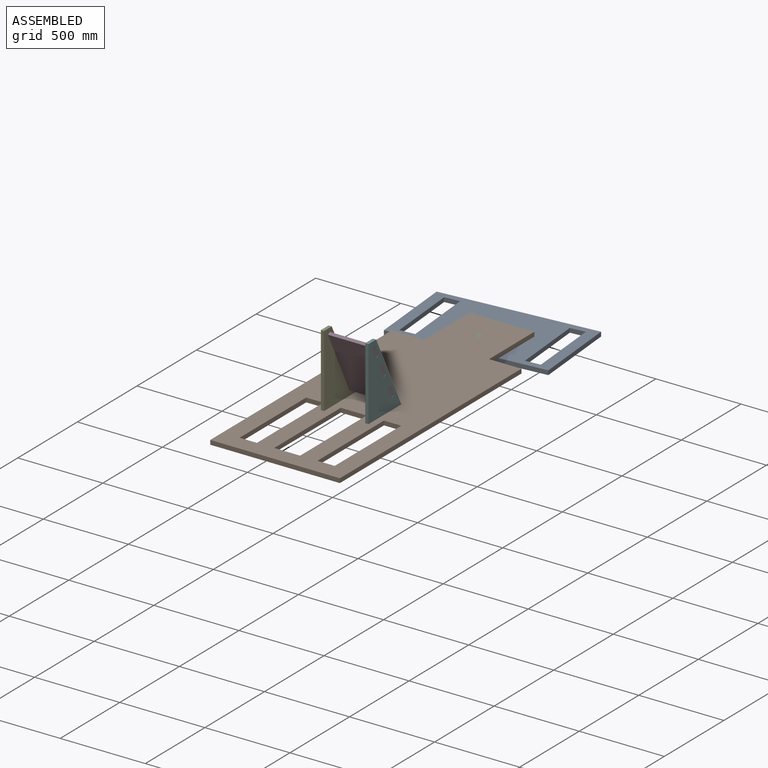
[diagram: assembled view]
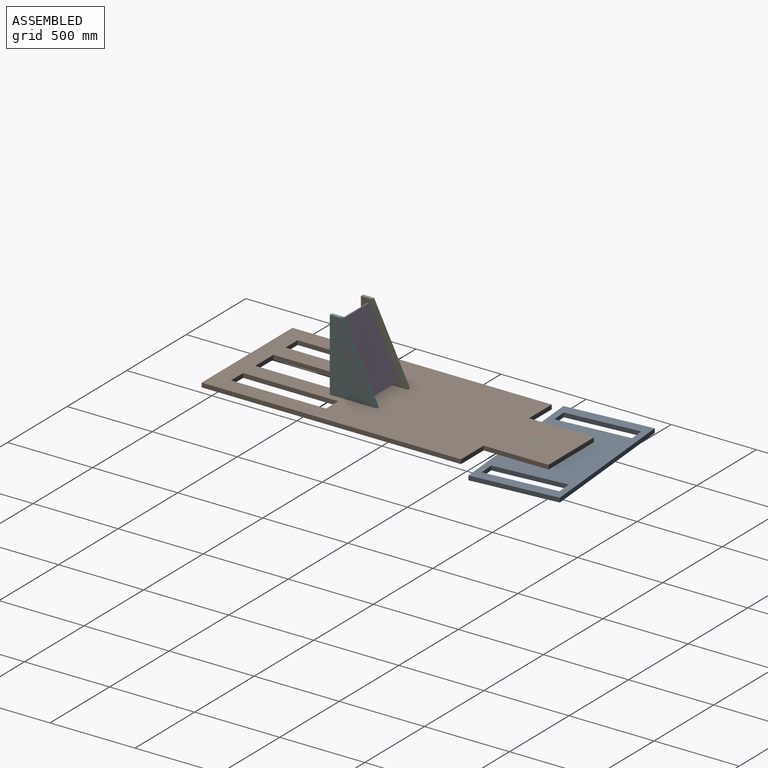
[diagram: assembled view, second angle]
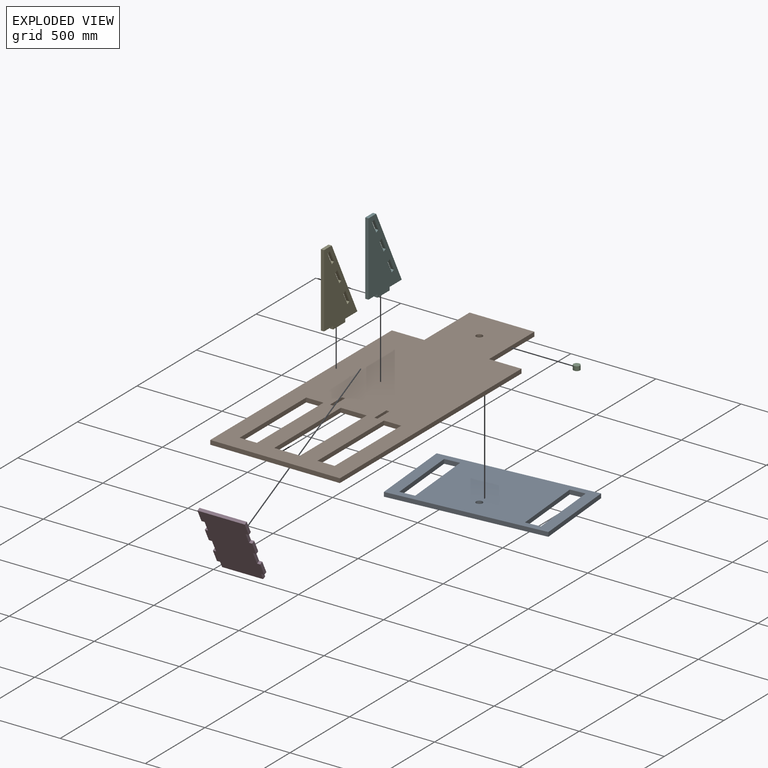
[diagram: exploded view]
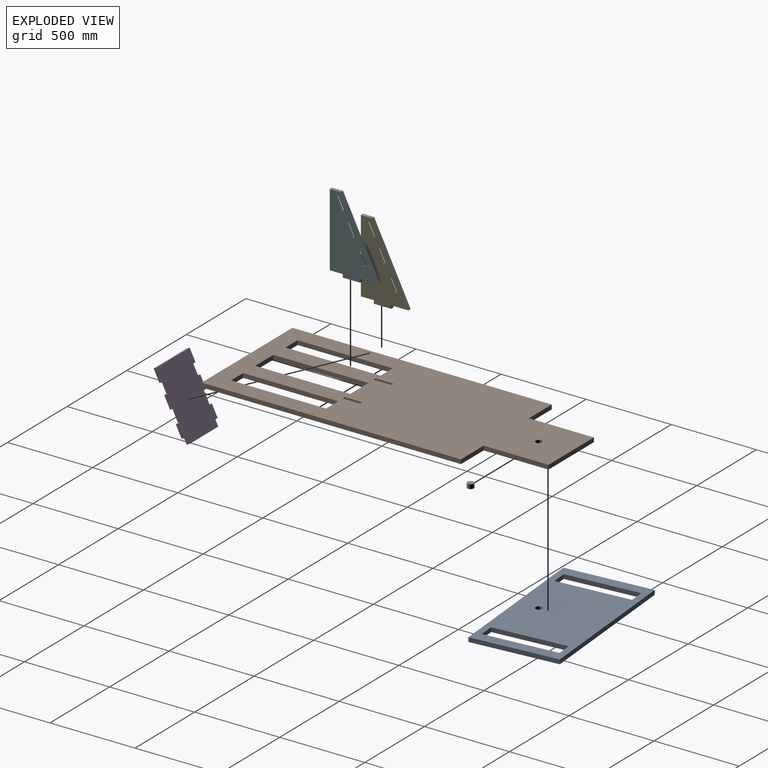
[diagram: exploded view, second angle]
ASSEMBLY  parts=6 mates=5
PART A: 15 faces, bbox 914.4x508x25.4 mm
  f0: plane 88.9x25.4mm, normal (0,1,0), area 2258.1mm2, adj f1,f12,f13,f14
  f1: plane 431.8x25.4mm, normal (1,0,0), area 10967.7mm2, adj f0,f2,f13,f14
  f2: plane 88.9x25.4mm, normal (0,-1,0), area 2258.1mm2, adj f1,f12,f13,f14
  f3: plane 431.8x25.4mm, normal (-1,0,0), area 10967.7mm2, adj f4,f10,f13,f14
  f4: plane 88.9x25.4mm, normal (0,1,0), area 2258.1mm2, adj f3,f5,f13,f14
  f5: plane 431.8x25.4mm, normal (1,0,0), area 10967.7mm2, adj f4,f10,f13,f14
  f6: plane 508x25.4mm, normal (-1,0,0), area 12903.2mm2, adj f7,f11,f13,f14
  f7: plane 914.4x25.4mm, normal (0,-1,0), area 23225.8mm2, adj f6,f8,f13,f14
  f8: plane 508x25.4mm, normal (1,0,0), area 12903.2mm2, adj f7,f11,f13,f14
  f9: cylinder r=19.05mm len=38.1mm, axis (0,0,-1), area 3040.2mm2, adj f13,f14
  f10: plane 88.9x25.4mm, normal (0,-1,0), area 2258.1mm2, adj f3,f5,f13,f14
  f11: plane 914.4x25.4mm, normal (0,1,0), area 23225.8mm2, adj f6,f8,f13,f14
  f12: plane 431.8x25.4mm, normal (-1,0,0), area 10967.7mm2, adj f0,f2,f13,f14
  f13: plane 914.4x508mm, normal (0,0,1), area 386601.1mm2, adj f0,f1,f2,f3,f4,f5,f6,f7
  f14: plane 914.4x508mm, normal (0,0,-1), area 386601.1mm2, adj f0,f1,f2,f3,f4,f5,f6,f7
PART B: 31 faces, bbox 762x1905x25.4 mm
  f0: plane 101.6x25.4mm, normal (-1,0,0), area 2580.6mm2, adj f1,f22,f29,f30
  f1: plane 25.4x18.54mm, normal (0,1,0), area 471mm2, adj f0,f2,f29,f30
  f2: plane 101.6x25.4mm, normal (1,0,0), area 2580.6mm2, adj f1,f22,f29,f30
  f3: plane 101.6x25.4mm, normal (0,-1,0), area 2580.6mm2, adj f4,f23,f29,f30
  f4: plane 558.8x25.4mm, normal (-1,0,0), area 14193.5mm2, adj f3,f5,f29,f30
  f5: plane 101.6x25.4mm, normal (0,1,0), area 2580.6mm2, adj f4,f23,f29,f30
  f6: plane 558.8x25.4mm, normal (-1,0,0), area 14193.5mm2, adj f7,f24,f29,f30
  f7: plane 101.6x25.4mm, normal (0,1,0), area 2580.6mm2, adj f6,f8,f29,f30
  f8: plane 558.8x25.4mm, normal (1,0,0), area 14193.5mm2, adj f7,f24,f29,f30
  f9: plane 558.8x25.4mm, normal (-1,0,0), area 14193.5mm2, adj f10,f25,f29,f30
  f10: plane 152.4x25.4mm, normal (0,1,0), area 3871mm2, adj f9,f11,f29,f30
  f11: plane 558.8x25.4mm, normal (1,0,0), area 14193.5mm2, adj f10,f25,f29,f30
  f12: plane 1524x25.4mm, normal (1,0,0), area 38709.6mm2, adj f13,f26,f29,f30
  f13: plane 190.5x25.4mm, normal (0,1,0), area 4838.7mm2, adj f12,f14,f29,f30
  f14: plane 381x25.4mm, normal (1,0,0), area 9677.4mm2, adj f13,f15,f29,f30
  f15: plane 381x25.4mm, normal (0,1,0), area 9677.4mm2, adj f14,f16,f29,f30
  f16: plane 381x25.4mm, normal (-1,0,0), area 9677.4mm2, adj f15,f17,f29,f30
  f17: plane 190.5x25.4mm, normal (0,1,0), area 4838.7mm2, adj f16,f18,f29,f30
  f18: plane 1524x25.4mm, normal (-1,0,0), area 38709.6mm2, adj f17,f26,f29,f30
  f19: plane 25.4x18.54mm, normal (0,1,0), area 471mm2, adj f20,f27,f29,f30
  f20: plane 101.6x25.4mm, normal (1,0,0), area 2580.6mm2, adj f19,f21,f29,f30
  f21: plane 25.4x18.54mm, normal (0,-1,0), area 471mm2, adj f20,f27,f29,f30
  f22: plane 25.4x18.54mm, normal (0,-1,0), area 471mm2, adj f0,f2,f29,f30
  f23: plane 558.8x25.4mm, normal (1,0,0), area 14193.5mm2, adj f3,f5,f29,f30
  f24: plane 101.6x25.4mm, normal (0,-1,0), area 2580.6mm2, adj f6,f8,f29,f30
  f25: plane 152.4x25.4mm, normal (0,-1,0), area 3871mm2, adj f9,f11,f29,f30
  f26: plane 762x25.4mm, normal (0,-1,0), area 19354.8mm2, adj f12,f18,f29,f30
  f27: plane 101.6x25.4mm, normal (-1,0,0), area 2580.6mm2, adj f19,f21,f29,f30
  f28: cylinder r=19.05mm len=38.1mm, axis (0,0,-1), area 3040.2mm2, adj f29,f30
  f29: plane 1905x762mm, normal (0,0,1), area 1102831.9mm2, adj f0,f1,f2,f3,f4,f5,f6,f7
  f30: plane 1905x762mm, normal (0,0,-1), area 1102831.9mm2, adj f0,f1,f2,f3,f4,f5,f6,f7
PART C: 3 faces, bbox 38.1x38.1x25.4 mm
  f0: cylinder r=19.05mm len=38.1mm, axis (0,0,-1), area 3040.2mm2, adj f1,f2
  f1: plane 38.1x38.1mm, normal (0,0,1), area 1140.1mm2, adj f0
  f2: plane 38.1x38.1mm, normal (0,0,-1), area 1140.1mm2, adj f0
PART D: 26 faces, bbox 278.4x406.4x19.1 mm
  f0: plane 63.5x19.05mm, normal (1,0,0), area 1209.7mm2, adj f1,f23,f24,f25
  f1: plane 19.05x18.54mm, normal (0,-1,0), area 353.2mm2, adj f0,f2,f24,f25
  f2: plane 76.2x19.05mm, normal (1,0,0), area 1451.6mm2, adj f1,f3,f24,f25
  f3: plane 278.38x19.05mm, normal (0,1,0), area 5303.2mm2, adj f2,f4,f24,f25
  f4: plane 76.2x19.05mm, normal (-1,0,0), area 1451.6mm2, adj f3,f5,f24,f25
  f5: plane 19.05x18.54mm, normal (0,-1,0), area 353.2mm2, adj f4,f6,f24,f25
  f6: plane 63.5x19.05mm, normal (-1,0,0), area 1209.7mm2, adj f5,f7,f24,f25
  f7: plane 19.05x18.54mm, normal (0,1,0), area 353.2mm2, adj f6,f8,f24,f25
  f8: plane 76.2x19.05mm, normal (-1,0,0), area 1451.6mm2, adj f7,f9,f24,f25
  f9: plane 19.05x18.54mm, normal (0,-1,0), area 353.2mm2, adj f8,f10,f24,f25
  f10: plane 76.2x19.05mm, normal (-1,0,0), area 1451.6mm2, adj f9,f11,f24,f25
  f11: plane 19.05x18.54mm, normal (0,1,0), area 353.2mm2, adj f10,f12,f24,f25
  f12: plane 76.2x19.05mm, normal (-1,0,0), area 1451.6mm2, adj f11,f13,f24,f25
  f13: plane 19.05x18.54mm, normal (0,-1,0), area 353.2mm2, adj f12,f14,f24,f25
  f14: plane 38.1x19.05mm, normal (-1,0,0), area 725.8mm2, adj f13,f15,f24,f25
  f15: plane 241.3x19.05mm, normal (0,-1,0), area 4596.8mm2, adj f14,f16,f24,f25
  f16: plane 38.1x19.05mm, normal (1,0,0), area 725.8mm2, adj f15,f17,f24,f25
  f17: plane 19.05x18.54mm, normal (0,-1,0), area 353.2mm2, adj f16,f18,f24,f25
  f18: plane 76.2x19.05mm, normal (1,0,0), area 1451.6mm2, adj f17,f19,f24,f25
  f19: plane 19.05x18.54mm, normal (0,1,0), area 353.2mm2, adj f18,f20,f24,f25
  f20: plane 76.2x19.05mm, normal (1,0,0), area 1451.6mm2, adj f19,f21,f24,f25
  f21: plane 19.05x18.54mm, normal (0,-1,0), area 353.2mm2, adj f20,f22,f24,f25
  f22: plane 76.2x19.05mm, normal (1,0,0), area 1451.6mm2, adj f21,f23,f24,f25
  f23: plane 19.05x18.54mm, normal (0,1,0), area 353.2mm2, adj f0,f22,f24,f25
  f24: plane 406.4x278.38mm, normal (0,0,1), area 106541.7mm2, adj f0,f1,f2,f3,f4,f5,f6,f7
  f25: plane 406.4x278.38mm, normal (0,0,-1), area 106541.7mm2, adj f0,f1,f2,f3,f4,f5,f6,f7
PART E: 22 faces, bbox 19.1x279.4x450.3 mm
  f0: plane 68.22x33.95mm, normal (0,-0.9,0.45), area 1451.6mm2, adj f1,f19,f20,f21
  f1: plane 19.05x16.6mm, normal (0,0.45,0.9), area 353.2mm2, adj f0,f2,f20,f21
  f2: plane 68.22x33.95mm, normal (0,0.9,-0.45), area 1451.6mm2, adj f1,f19,f20,f21
  f3: plane 68.22x33.95mm, normal (0,-0.9,0.45), area 1451.6mm2, adj f4,f16,f20,f21
  f4: plane 19.05x16.6mm, normal (0,0.45,0.9), area 353.2mm2, adj f3,f5,f20,f21
  f5: plane 68.22x33.95mm, normal (0,0.9,-0.45), area 1451.6mm2, adj f4,f16,f20,f21
  f6: plane 19.05x17.06mm, normal (0,0.45,0.9), area 362.9mm2, adj f7,f17,f20,f21
  f7: plane 68x34.4mm, normal (0,0.89,-0.45), area 1451.6mm2, adj f6,f8,f20,f21
  f8: plane 19.05x16.6mm, normal (0,-0.45,-0.9), area 353.2mm2, adj f7,f17,f20,f21
  f9: plane 19.05x18.54mm, normal (0,1,0), area 353.2mm2, adj f10,f18,f20,f21
  f10: plane 76.2x19.05mm, normal (0,0,-1), area 1451.6mm2, adj f9,f11,f20,f21
  f11: plane 431.8x19.05mm, normal (0,1,0), area 8225.8mm2, adj f10,f12,f20,f21
  f12: plane 64.55x19.05mm, normal (0,0,1), area 1229.6mm2, adj f11,f13,f20,f21
  f13: plane 431.8x214.85mm, normal (0,-0.9,0.45), area 9187.8mm2, adj f12,f14,f20,f21
  f14: plane 101.6x19.05mm, normal (0,0,-1), area 1935.5mm2, adj f13,f15,f20,f21
  f15: plane 19.05x18.54mm, normal (0,-1,0), area 353.2mm2, adj f14,f18,f20,f21
  f16: plane 19.05x16.6mm, normal (0,-0.45,-0.9), area 353.2mm2, adj f3,f5,f20,f21
  f17: plane 68.22x33.95mm, normal (0,-0.9,0.45), area 1451.6mm2, adj f6,f8,f20,f21
  f18: plane 101.6x19.05mm, normal (0,0,-1), area 1935.5mm2, adj f9,f15,f20,f21
  f19: plane 19.05x16.6mm, normal (0,-0.45,-0.9), area 353.2mm2, adj f0,f2,f20,f21
  f20: plane 450.34x279.4mm, normal (1,0,0), area 71884.1mm2, adj f0,f1,f2,f3,f4,f5,f6,f7
  f21: plane 450.34x279.4mm, normal (-1,0,0), area 71884.1mm2, adj f0,f1,f2,f3,f4,f5,f6,f7
PART F: same geometry as E
PLACE A rot(axis=(0,0,-1),175deg) t=(197.38,1763.36,-283.14)mm
PLACE B t=(185.81,799.97,-257.74)mm
PLACE C t=(184.39,1752.47,-257.74)mm
PLACE D rot(axis=(0,-0.53,-0.85),180deg) t=(82.33,763.44,-59.12)mm
PLACE E rot(axis=(0,0,-1),180deg) t=(64.91,716.24,-11.18)mm
PLACE F rot(axis=(0,0,-1),180deg) t=(325.77,716.24,-11.18)mm
MATE fastened B.f28 <-> C.f0  axis (0,0,1) through (185.81,1752.47,-232.34)mm
MATE fastened F.f18 <-> B.f30  axis (0,0,-1) through (306.72,799.97,-257.74)mm
MATE fastened D.f25 <-> E.f3  axis (0,-0.9,-0.45) through (45.86,818.07,-168.92)mm
MATE revolute A.f9 <-> B.f28  axis (0,0,1) through (185.81,1752.47,-257.74)mm
MATE fastened E.f18 <-> B.f30  axis (0,0,-1) through (64.91,799.97,-257.74)mm
